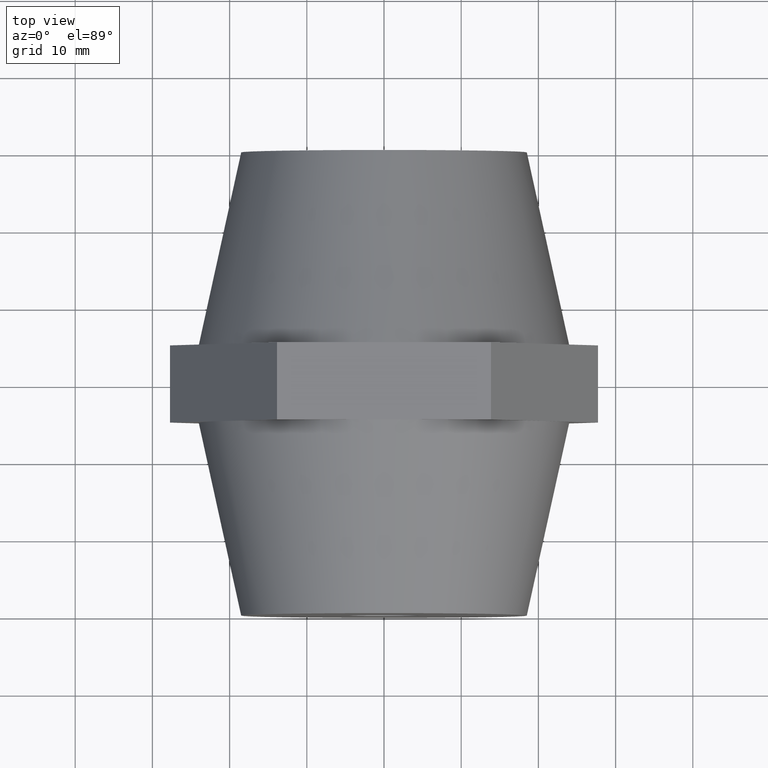
[diagram: clean part render]
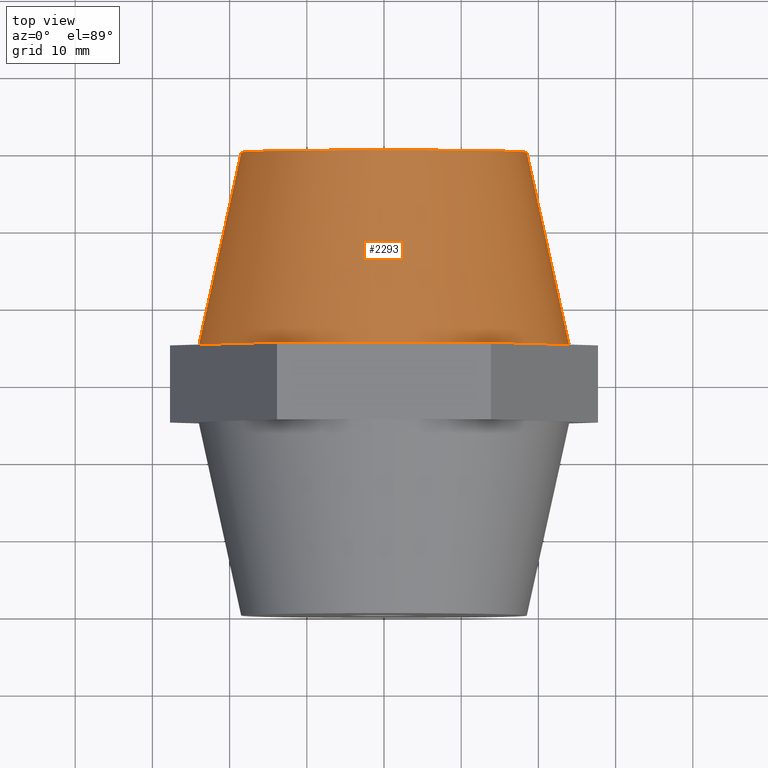
[diagram: same view with one face highlighted and labeled with its STEP entity id]
A machine part, top view. The second image highlights one B-rep face of the part: STEP entity #2293.
In plain terms, the highlighted conical surface has half-angle 12.407 deg.
Its self-contained STEP definition (entity closure, byte-faithful):
#45 = AXIS2_PLACEMENT_3D ( 'NONE', #1536, #1821, #2151 ) ;
#117 = LINE ( 'NONE', #2838, #3675 ) ;
#118 = EDGE_CURVE ( 'NONE', #689, #2697, #2491, .T. ) ;
#160 = EDGE_CURVE ( 'NONE', #1615, #1743, #332, .T. ) ;
#310 = ORIENTED_EDGE ( 'NONE', *, *, #950, .T. ) ;
#332 = CIRCLE ( 'NONE', #3501, 24.00000000000000000 ) ;
#342 = ORIENTED_EDGE ( 'NONE', *, *, #160, .T. ) ;
#345 = CARTESIAN_POINT ( 'NONE',  ( 3.061616997868379900E-015, 5.000000000000000000, 0.0000000000000000000 ) ) ;
#495 = DIRECTION ( 'NONE',  ( -1.000000000000000000, -1.084202172485504400E-016, 0.0000000000000000000 ) ) ;
#511 = CARTESIAN_POINT ( 'NONE',  ( -18.50000000000000000, 29.99999999999999600, 2.602374448188125800E-015 ) ) ;
#514 = ORIENTED_EDGE ( 'NONE', *, *, #3179, .F. ) ;
#552 = DIRECTION ( 'NONE',  ( -1.224646799147352000E-016, 1.000000000000000000, 0.0000000000000000000 ) ) ;
#612 = AXIS2_PLACEMENT_3D ( 'NONE', #2747, #1611, #495 ) ;
#621 = CIRCLE ( 'NONE', #1422, 24.00000000000000000 ) ;
#657 = CARTESIAN_POINT ( 'NONE',  ( -2.774555597924435200E-031, 30.00000000000000000, 0.0000000000000000000 ) ) ;
#689 = VERTEX_POINT ( 'NONE', #2173 ) ;
#805 = EDGE_CURVE ( 'NONE', #2661, #1615, #117, .T. ) ;
#915 = DIRECTION ( 'NONE',  ( -1.224646799147352000E-016, 1.000000000000000000, 0.0000000000000000000 ) ) ;
#950 = EDGE_CURVE ( 'NONE', #1743, #689, #1543, .T. ) ;
#1103 = DIRECTION ( 'NONE',  ( -1.000000000000000000, -1.875376730785737500E-016, 0.0000000000000000000 ) ) ;
#1144 = DIRECTION ( 'NONE',  ( 1.000000000000000000, 1.875376730785737500E-016, 0.0000000000000000000 ) ) ;
#1150 = CARTESIAN_POINT ( 'NONE',  ( -24.00000000000000000, 4.999999999999996400, 2.939152317953648300E-015 ) ) ;
#1183 = CARTESIAN_POINT ( 'NONE',  ( -20.78460969082655300, 5.000000000000000000, 12.00000000000000000 ) ) ;
#1366 = DIRECTION ( 'NONE',  ( -0.2148617826751198800, -0.9766444667050899800, 2.631297944121799100E-017 ) ) ;
#1399 = ORIENTED_EDGE ( 'NONE', *, *, #1633, .T. ) ;
#1422 = AXIS2_PLACEMENT_3D ( 'NONE', #3143, #552, #3166 ) ;
#1536 = CARTESIAN_POINT ( 'NONE',  ( 3.061616997868379900E-015, 5.000000000000000000, 0.0000000000000000000 ) ) ;
#1543 = CIRCLE ( 'NONE', #45, 24.00000000000000000 ) ;
#1583 = ORIENTED_EDGE ( 'NONE', *, *, #805, .T. ) ;
#1611 = DIRECTION ( 'NONE',  ( -1.224646799147352000E-016, 1.000000000000000000, 0.0000000000000000000 ) ) ;
#1615 = VERTEX_POINT ( 'NONE', #1150 ) ;
#1633 = EDGE_CURVE ( 'NONE', #2697, #1747, #621, .T. ) ;
#1743 = VERTEX_POINT ( 'NONE', #1183 ) ;
#1747 = VERTEX_POINT ( 'NONE', #3512 ) ;
#1751 = CARTESIAN_POINT ( 'NONE',  ( 20.78460969082655300, 5.000000000000000000, 12.00000000000000000 ) ) ;
#1821 = DIRECTION ( 'NONE',  ( -1.224646799147352000E-016, 1.000000000000000000, 0.0000000000000000000 ) ) ;
#1880 = VECTOR ( 'NONE', #2942, 1000.000000000000100 ) ;
#1976 = DIRECTION ( 'NONE',  ( 1.224646799147352000E-016, -1.000000000000000000, 0.0000000000000000000 ) ) ;
#2151 = DIRECTION ( 'NONE',  ( -1.000000000000000000, -1.084202172485504400E-016, 0.0000000000000000000 ) ) ;
#2173 = CARTESIAN_POINT ( 'NONE',  ( -3.004629197474319600E-015, 5.000000000000000000, 24.00000000000000000 ) ) ;
#2293 = ADVANCED_FACE ( 'NONE', ( #3447 ), #2377, .T. ) ;
#2342 = DIRECTION ( 'NONE',  ( -1.224646799147352000E-016, 1.000000000000000000, 0.0000000000000000000 ) ) ;
#2377 = CONICAL_SURFACE ( 'NONE', #3372, 18.50000000000000000, 0.2165503049760894300 ) ;
#2491 = CIRCLE ( 'NONE', #612, 24.00000000000000000 ) ;
#2517 = LINE ( 'NONE', #2997, #1880 ) ;
#2612 = CARTESIAN_POINT ( 'NONE',  ( 18.50000000000000000, 30.00000000000000400, 0.0000000000000000000 ) ) ;
#2623 = DIRECTION ( 'NONE',  ( -1.000000000000000000, -1.084202172485504400E-016, 0.0000000000000000000 ) ) ;
#2661 = VERTEX_POINT ( 'NONE', #511 ) ;
#2672 = ORIENTED_EDGE ( 'NONE', *, *, #118, .T. ) ;
#2697 = VERTEX_POINT ( 'NONE', #1751 ) ;
#2735 = CIRCLE ( 'NONE', #3227, 18.50000000000000000 ) ;
#2747 = CARTESIAN_POINT ( 'NONE',  ( 3.061616997868379900E-015, 5.000000000000000000, 0.0000000000000000000 ) ) ;
#2782 = EDGE_CURVE ( 'NONE', #3087, #1747, #2517, .T. ) ;
#2793 = ORIENTED_EDGE ( 'NONE', *, *, #2782, .F. ) ;
#2838 = CARTESIAN_POINT ( 'NONE',  ( -18.50000000000000000, 29.99999999999999600, 2.265596578422603400E-015 ) ) ;
#2855 = CARTESIAN_POINT ( 'NONE',  ( -2.774555597924435200E-031, 30.00000000000000000, 0.0000000000000000000 ) ) ;
#2942 = DIRECTION ( 'NONE',  ( 0.2148617826751201000, -0.9766444667050898600, 0.0000000000000000000 ) ) ;
#2997 = CARTESIAN_POINT ( 'NONE',  ( 18.50000000000000000, 30.00000000000000400, 0.0000000000000000000 ) ) ;
#3087 = VERTEX_POINT ( 'NONE', #2612 ) ;
#3125 = EDGE_LOOP ( 'NONE', ( #514, #1583, #342, #310, #2672, #1399, #2793 ) ) ;
#3143 = CARTESIAN_POINT ( 'NONE',  ( 3.061616997868379900E-015, 5.000000000000000000, 0.0000000000000000000 ) ) ;
#3166 = DIRECTION ( 'NONE',  ( -1.000000000000000000, -1.084202172485504400E-016, 0.0000000000000000000 ) ) ;
#3179 = EDGE_CURVE ( 'NONE', #2661, #3087, #2735, .T. ) ;
#3227 = AXIS2_PLACEMENT_3D ( 'NONE', #657, #915, #1103 ) ;
#3372 = AXIS2_PLACEMENT_3D ( 'NONE', #2855, #1976, #1144 ) ;
#3447 = FACE_OUTER_BOUND ( 'NONE', #3125, .T. ) ;
#3501 = AXIS2_PLACEMENT_3D ( 'NONE', #345, #2342, #2623 ) ;
#3512 = CARTESIAN_POINT ( 'NONE',  ( 24.00000000000000400, 5.000000000000003600, 0.0000000000000000000 ) ) ;
#3675 = VECTOR ( 'NONE', #1366, 1000.000000000000000 ) ;